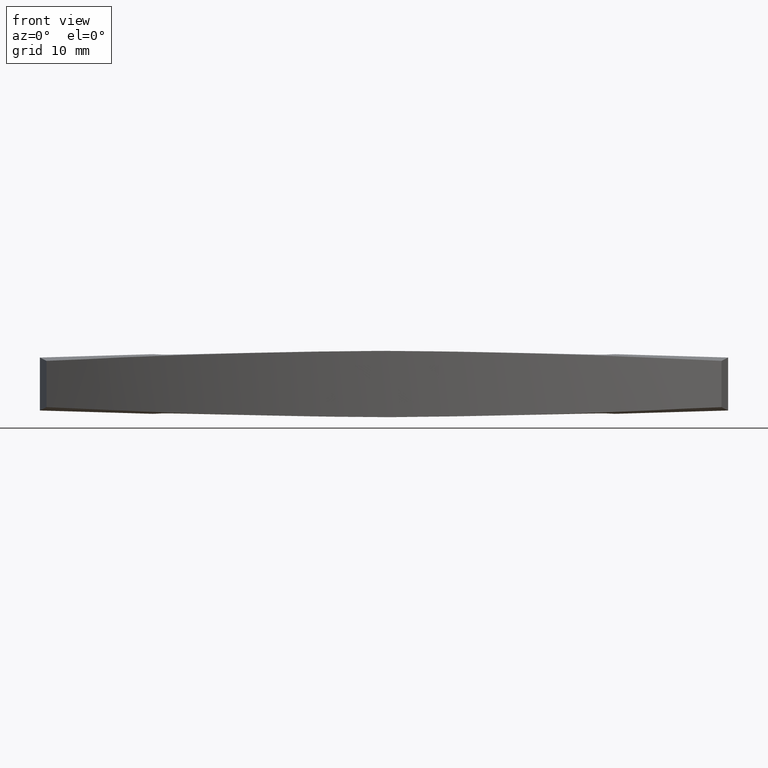
[diagram: clean part render]
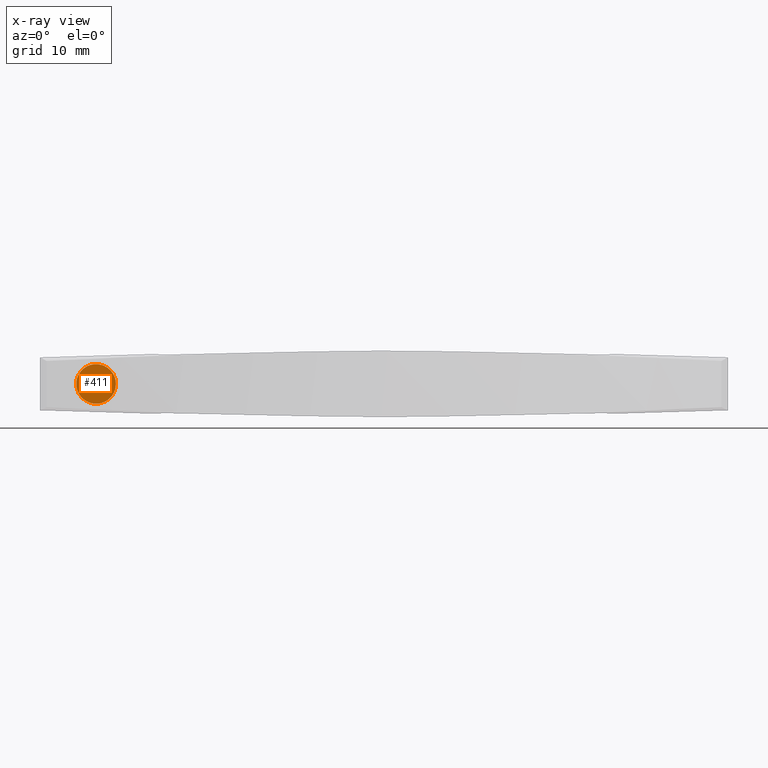
[diagram: x-ray — body ghosted, one internal face saturated and labeled with its STEP entity id]
A machine part, front view, then the same camera in x-ray: the body is ghosted and one INTERNAL B-rep face — a face not visible from any outside direction — is saturated and labeled: STEP entity #411.
In plain terms, the highlighted face is a freeform B-spline surface patch.
Its self-contained STEP definition (entity closure, byte-faithful):
#283=CARTESIAN_POINT('',(43.146397295693703,2.979028579051059,8.0));
#284=VERTEX_POINT('',#283);
#290=CARTESIAN_POINT('',(46.500500000000002,0.0,8.0));
#291=VERTEX_POINT('',#290);
#292=CARTESIAN_POINT('',(43.146397295693703,2.979028579051060,8.0));
#293=CARTESIAN_POINT('',(43.322827640704695,3.000000000000000,8.0));
#294=CARTESIAN_POINT('',(43.500500000000002,3.0,8.0));
#295=CARTESIAN_POINT('',(46.500500000000002,3.0,8.0));
#296=CARTESIAN_POINT('',(46.500500000000002,0.0,8.0));
#304=(BOUNDED_CURVE()B_SPLINE_CURVE(2,(#292,#293,#294,#295,#296),.UNSPECIFIED.,.F.,.U.)B_SPLINE_CURVE_WITH_KNOTS((3,2,3),(0.229562473477519,0.250000000000000,0.500000000000000),.UNSPECIFIED.)CURVE()GEOMETRIC_REPRESENTATION_ITEM()RATIONAL_B_SPLINE_CURVE((0.956026754113160,0.976055948288981,1.0,0.707106781186548,1.0))REPRESENTATION_ITEM(''));
#305=EDGE_CURVE('',#284,#291,#304,.T.);
#307=CARTESIAN_POINT('',(43.683645618680302,-2.994404395260969,8.0));
#308=VERTEX_POINT('',#307);
#309=CARTESIAN_POINT('',(46.500500000000002,0.0,8.0));
#310=CARTESIAN_POINT('',(46.500499999999995,-2.822118200574073,8.0));
#311=CARTESIAN_POINT('',(43.683645618680302,-2.994404395260969,8.0));
#319=(BOUNDED_CURVE()B_SPLINE_CURVE(2,(#309,#310,#311),.UNSPECIFIED.,.F.,.U.)B_SPLINE_CURVE_WITH_KNOTS((3,3),(0.500000000000000,0.739332962233241),.UNSPECIFIED.)CURVE()GEOMETRIC_REPRESENTATION_ITEM()RATIONAL_B_SPLINE_CURVE((1.0,0.719603993293391,0.976072041654497))REPRESENTATION_ITEM(''));
#320=EDGE_CURVE('',#291,#308,#319,.T.);
#354=CARTESIAN_POINT('',(40.500500000000002,0.0,8.0));
#355=VERTEX_POINT('',#354);
#356=CARTESIAN_POINT('',(43.683645618680302,-2.994404395260968,8.0));
#357=CARTESIAN_POINT('',(43.592158289971714,-3.000000000000000,8.0));
#358=CARTESIAN_POINT('',(43.500500000000002,-3.0,8.0));
#359=CARTESIAN_POINT('',(40.500500000000002,-3.0,8.0));
#360=CARTESIAN_POINT('',(40.500500000000002,0.0,8.0));
#368=(BOUNDED_CURVE()B_SPLINE_CURVE(2,(#356,#357,#358,#359,#360),.UNSPECIFIED.,.F.,.U.)B_SPLINE_CURVE_WITH_KNOTS((3,2,3),(0.739332962233241,0.750000000000000,1.0),.UNSPECIFIED.)CURVE()GEOMETRIC_REPRESENTATION_ITEM()RATIONAL_B_SPLINE_CURVE((0.976072041654497,0.987502787893157,1.0,0.707106781186548,1.0))REPRESENTATION_ITEM(''));
#369=EDGE_CURVE('',#308,#355,#368,.T.);
#371=CARTESIAN_POINT('',(40.500500000000002,0.0,8.0));
#372=CARTESIAN_POINT('',(40.500500000000002,2.664523577248791,8.0));
#373=CARTESIAN_POINT('',(43.146397295693703,2.979028579051060,8.0));
#381=(BOUNDED_CURVE()B_SPLINE_CURVE(2,(#371,#372,#373),.UNSPECIFIED.,.F.,.U.)B_SPLINE_CURVE_WITH_KNOTS((3,3),(0.0,0.229562473477519),.UNSPECIFIED.)CURVE()GEOMETRIC_REPRESENTATION_ITEM()RATIONAL_B_SPLINE_CURVE((1.0,0.731050832897566,0.956026754113160))REPRESENTATION_ITEM(''));
#382=EDGE_CURVE('',#355,#284,#381,.T.);
#400=CARTESIAN_POINT('',(46.800199706752302,-3.299626971036932,8.0));
#401=CARTESIAN_POINT('',(40.200799864094250,-3.299626971036932,8.0));
#402=CARTESIAN_POINT('',(46.800199706752302,3.299645424634953,8.0));
#403=CARTESIAN_POINT('',(40.200799864094250,3.299645424634953,8.0));
#404=B_SPLINE_SURFACE_WITH_KNOTS('',1,1,((#400,#402),(#401,#403)),.UNSPECIFIED.,.F.,.F.,.U.,(2,2),(2,2),(0.0,6.599399842658052),(0.0,6.599272395671886),.UNSPECIFIED.);
#405=ORIENTED_EDGE('',*,*,#369,.F.);
#406=ORIENTED_EDGE('',*,*,#320,.F.);
#407=ORIENTED_EDGE('',*,*,#305,.F.);
#408=ORIENTED_EDGE('',*,*,#382,.F.);
#409=EDGE_LOOP('',(#405,#406,#407,#408));
#410=FACE_OUTER_BOUND('',#409,.T.);
#411=ADVANCED_FACE('',(#410),#404,.F.);